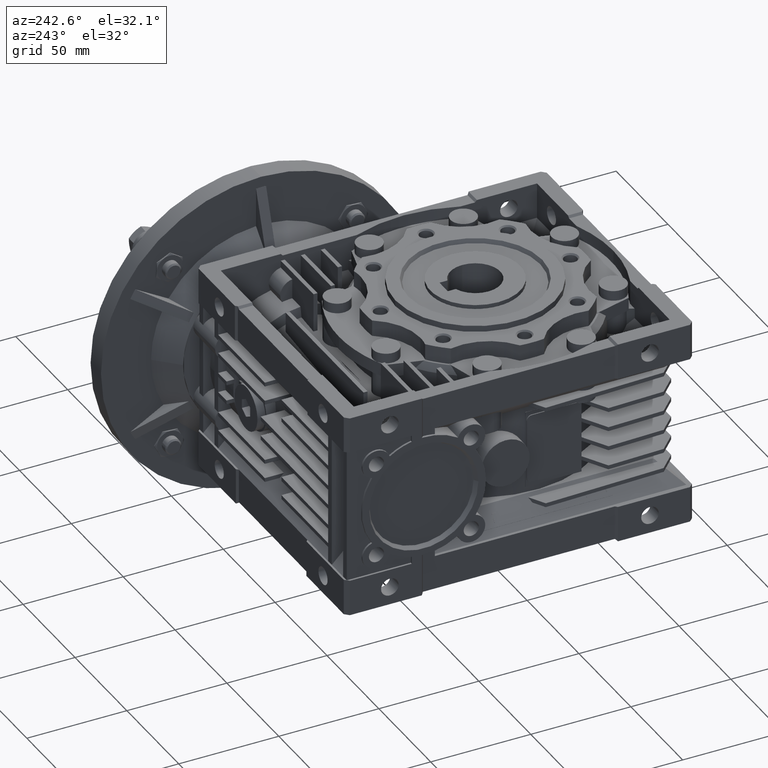
[diagram: clean part render]
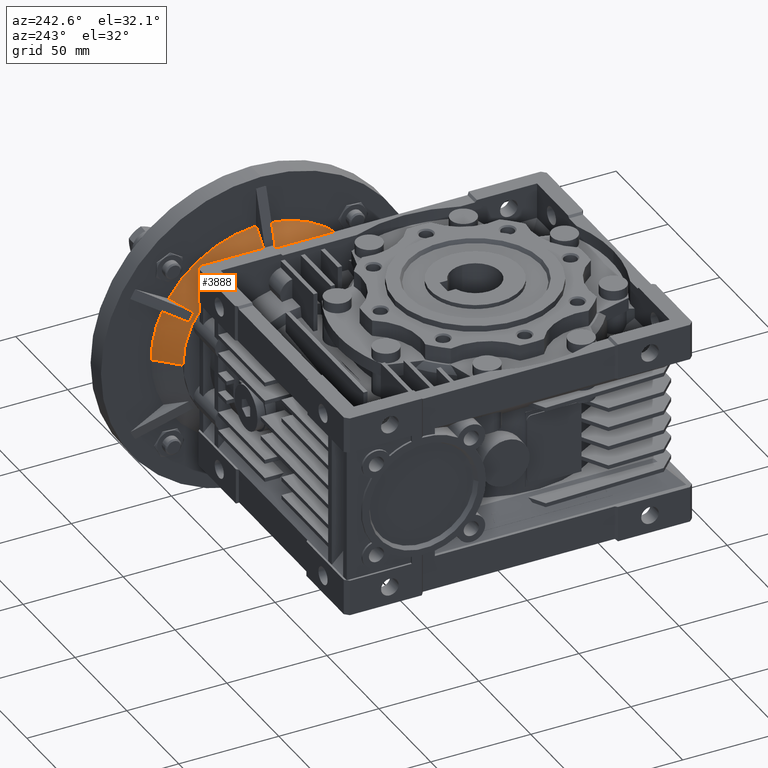
[diagram: same view with one face highlighted and labeled with its STEP entity id]
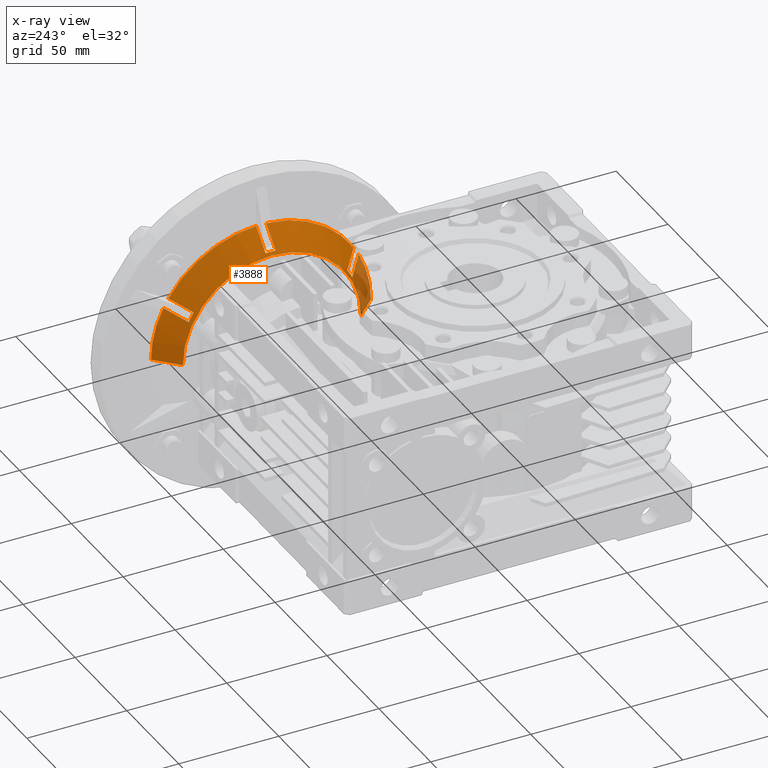
[diagram: x-ray of the same camera — body ghosted, the highlighted face saturated]
A machine part, auxiliary view. The second image highlights one B-rep face of the part: STEP entity #3888.
The next image is the same camera in x-ray: the body ghosted, the highlighted face saturated — about 8% of this face is hidden behind the body in this view.
In plain terms, the highlighted conical surface has half-angle 45 deg.
Its self-contained STEP definition (entity closure, byte-faithful):
#757 = CARTESIAN_POINT ( 'NONE',  ( 85.00000000000000000, 117.9500000000000028, 0.000000000000000000 ) ) ;
#2357 = ORIENTED_EDGE ( 'NONE', *, *, #17436, .T. ) ;
#2372 = AXIS2_PLACEMENT_3D ( 'NONE', #32932, #29253, #11903 ) ;
#2602 = DIRECTION ( 'NONE',  ( -1.000000000000000000, -2.241328441147374739E-46, -8.411704943638519843E-32 ) ) ;
#2849 = DIRECTION ( 'NONE',  ( 0.000000000000000000, 1.000000000000000000, -2.664535259100375303E-15 ) ) ;
#2958 = ORIENTED_EDGE ( 'NONE', *, *, #10149, .T. ) ;
#3000 = CARTESIAN_POINT ( 'NONE',  ( 85.00000000000000000, 14.21118033648709833, 25.28148682022515104 ) ) ;
#3473 = CIRCLE ( 'NONE', #9705, 54.94999999999999574 ) ;
#3618 = CARTESIAN_POINT ( 'NONE',  ( 75.83000000000001251, 24.66251712977949495, 25.02090740112259937 ) ) ;
#3627 = DIRECTION ( 'NONE',  ( 0.000000000000000000, -1.010212033325893122E-15, -1.000000000000000000 ) ) ;
#3888 = ADVANCED_FACE ( 'NONE', ( #39322 ), #42560, .T. ) ;
#4264 = VERTEX_POINT ( 'NONE', #27990 ) ;
#4918 = CARTESIAN_POINT ( 'NONE',  ( 81.94301536204764602, 65.50000000000000000, 51.83294730972200171 ) ) ;
#5175 = CARTESIAN_POINT ( 'NONE',  ( 85.00000000000000000, 14.21118033648709833, 25.28148682022515104 ) ) ;
#5419 = DIRECTION ( 'NONE',  ( 0.000000000000000000, 1.000000000000000000, 1.776356839400250070E-15 ) ) ;
#5517 = CARTESIAN_POINT ( 'NONE',  ( 81.94301536204761760, 19.36135087676049693, 28.08153716432209990 ) ) ;
#5602 = B_SPLINE_CURVE_WITH_KNOTS ( 'NONE', 3,
 ( #37803, #30003, #12204, #8794 ),
 .UNSPECIFIED., .F., .F.,
 ( 4, 4 ),
 ( 1.040834085586083948E-17, 0.01297641099844203810 ),
 .UNSPECIFIED. ) ;
#5750 = CIRCLE ( 'NONE', #17447, 44.50000000000000000 ) ;
#5910 = AXIS2_PLACEMENT_3D ( 'NONE', #24847, #28967, #9973 ) ;
#5946 = VERTEX_POINT ( 'NONE', #30051 ) ;
#6566 = EDGE_CURVE ( 'NONE', #5946, #38345, #35055, .T. ) ;
#6917 = VERTEX_POINT ( 'NONE', #47451 ) ;
#7303 = EDGE_CURVE ( 'NONE', #38345, #35847, #18812, .T. ) ;
#7605 = ORIENTED_EDGE ( 'NONE', *, *, #38374, .T. ) ;
#7686 = DIRECTION ( 'NONE',  ( 0.7071067811865480168, -0.7071067811865470176, 8.659560562354926695E-17 ) ) ;
#8520 = CARTESIAN_POINT ( 'NONE',  ( 75.83000000000001251, 103.8374828702204979, 20.69078038220039772 ) ) ;
#8794 = CARTESIAN_POINT ( 'NONE',  ( 75.83000000000001251, 101.3374828702205122, 25.02090740112259937 ) ) ;
#8919 = VERTEX_POINT ( 'NONE', #11535 ) ;
#9108 = VERTEX_POINT ( 'NONE', #24062 ) ;
#9363 = CARTESIAN_POINT ( 'NONE',  ( 78.88628487313006588, 60.50000000000000000, 48.77254001339400702 ) ) ;
#9705 = AXIS2_PLACEMENT_3D ( 'NONE', #31888, #13330, #43071 ) ;
#9973 = DIRECTION ( 'NONE',  ( 0.000000000000000000, 0.000000000000000000, -1.000000000000000000 ) ) ;
#10036 = B_SPLINE_CURVE_WITH_KNOTS ( 'NONE', 3,
 ( #12266, #9363, #27624, #42503 ),
 .UNSPECIFIED., .F., .F.,
 ( 4, 4 ),
 ( 1.110764993427083940E-17, 0.01297641099844202076 ),
 .UNSPECIFIED. ) ;
#10149 = EDGE_CURVE ( 'NONE', #39655, #26872, #31301, .T. ) ;
#10257 = CARTESIAN_POINT ( 'NONE',  ( 74.55000000000001137, 63.00000000000000000, 0.000000000000000000 ) ) ;
#10551 = DIRECTION ( 'NONE',  ( 0.000000000000000000, 0.000000000000000000, -1.000000000000000000 ) ) ;
#10627 = VERTEX_POINT ( 'NONE', #33612 ) ;
#11056 = EDGE_CURVE ( 'NONE', #35242, #39655, #19456, .T. ) ;
#11535 = CARTESIAN_POINT ( 'NONE',  ( 74.55000000000001137, 18.50000000000000355, 6.089556208760214551E-15 ) ) ;
#11546 = EDGE_CURVE ( 'NONE', #10627, #8919, #5750, .T. ) ;
#11903 = DIRECTION ( 'NONE',  ( 0.000000000000000000, 1.000000000000000000, 1.953992523340275196E-14 ) ) ;
#11961 = CARTESIAN_POINT ( 'NONE',  ( 78.88628487313006588, 65.50000000000000000, 48.77254001339400702 ) ) ;
#12204 = CARTESIAN_POINT ( 'NONE',  ( 78.88628487313003745, 103.9882586586922599, 26.55133351615809900 ) ) ;
#12266 = CARTESIAN_POINT ( 'NONE',  ( 75.83000000000001251, 60.50000000000000000, 45.71168778332300775 ) ) ;
#12629 = CIRCLE ( 'NONE', #25832, 45.78000000000000114 ) ;
#13163 = VERTEX_POINT ( 'NONE', #18292 ) ;
#13330 = DIRECTION ( 'NONE',  ( -1.000000000000000000, 0.000000000000000000, 0.000000000000000000 ) ) ;
#13635 = CIRCLE ( 'NONE', #32312, 45.78000000000000114 ) ;
#14117 = CARTESIAN_POINT ( 'NONE',  ( 85.00000000000000000, 63.00000000000000000, 0.000000000000000000 ) ) ;
#14174 = AXIS2_PLACEMENT_3D ( 'NONE', #21131, #2602, #2849 ) ;
#14201 = CARTESIAN_POINT ( 'NONE',  ( 75.83000000000001251, 63.00000000000000000, 0.000000000000000000 ) ) ;
#14248 = CARTESIAN_POINT ( 'NONE',  ( 75.83000000000001251, 63.00000000000000000, 0.000000000000000000 ) ) ;
#14887 = EDGE_CURVE ( 'NONE', #35235, #10627, #38596, .T. ) ;
#16154 = CARTESIAN_POINT ( 'NONE',  ( 85.00000000000000000, 111.7888196635128963, 25.28148682022509774 ) ) ;
#16761 = ORIENTED_EDGE ( 'NONE', *, *, #36068, .T. ) ;
#16777 = ORIENTED_EDGE ( 'NONE', *, *, #43853, .T. ) ;
#16863 = EDGE_CURVE ( 'NONE', #26668, #32565, #41593, .T. ) ;
#17436 = EDGE_CURVE ( 'NONE', #8919, #4264, #41066, .T. ) ;
#17447 = AXIS2_PLACEMENT_3D ( 'NONE', #10257, #18083, #25126 ) ;
#17678 = AXIS2_PLACEMENT_3D ( 'NONE', #14117, #22160, #3627 ) ;
#18083 = DIRECTION ( 'NONE',  ( 1.000000000000000000, 0.000000000000000000, -3.898255002195069934E-17 ) ) ;
#18292 = CARTESIAN_POINT ( 'NONE',  ( 85.00000000000000000, 60.50000000000000000, 54.89310065937250016 ) ) ;
#18615 = VERTEX_POINT ( 'NONE', #23301 ) ;
#18812 = B_SPLINE_CURVE_WITH_KNOTS ( 'NONE', 3,
 ( #45332, #11961, #4918, #41940 ),
 .UNSPECIFIED., .F., .F.,
 ( 4, 4 ),
 ( 0.000000000000000000, 0.01297641099844203810 ),
 .UNSPECIFIED. ) ;
#19456 = B_SPLINE_CURVE_WITH_KNOTS ( 'NONE', 3,
 ( #23549, #42063, #45693, #34517 ),
 .UNSPECIFIED., .F., .F.,
 ( 4, 4 ),
 ( 0.000000000000000000, 0.01297641099844203810 ),
 .UNSPECIFIED. ) ;
#19547 = CARTESIAN_POINT ( 'NONE',  ( 78.88628487313003745, 19.51174134130774362, 22.22120649723589736 ) ) ;
#19886 = CARTESIAN_POINT ( 'NONE',  ( 75.83000000000001251, 24.66251712977949495, 25.02090740112259937 ) ) ;
#20197 = B_SPLINE_CURVE_WITH_KNOTS ( 'NONE', 3,
 ( #19886, #24028, #5517, #46398 ),
 .UNSPECIFIED., .F., .F.,
 ( 4, 4 ),
 ( 4.906538933386799707E-18, 0.01297641099844202076 ),
 .UNSPECIFIED. ) ;
#20328 = ORIENTED_EDGE ( 'NONE', *, *, #11546, .T. ) ;
#21131 = CARTESIAN_POINT ( 'NONE',  ( 85.00000000000000000, 63.00000000000000000, 0.000000000000000000 ) ) ;
#21174 = ORIENTED_EDGE ( 'NONE', *, *, #24849, .T. ) ;
#21216 = ORIENTED_EDGE ( 'NONE', *, *, #34669, .F. ) ;
#22096 = ORIENTED_EDGE ( 'NONE', *, *, #11056, .T. ) ;
#22160 = DIRECTION ( 'NONE',  ( -1.000000000000000000, 0.000000000000000000, 0.000000000000000000 ) ) ;
#22241 = CIRCLE ( 'NONE', #37063, 54.94999999999999574 ) ;
#22652 = ORIENTED_EDGE ( 'NONE', *, *, #44993, .T. ) ;
#23299 = EDGE_CURVE ( 'NONE', #18615, #35242, #12629, .T. ) ;
#23301 = CARTESIAN_POINT ( 'NONE',  ( 75.83000000000001251, 101.3374828702205122, 25.02090740112259937 ) ) ;
#23549 = CARTESIAN_POINT ( 'NONE',  ( 75.83000000000001251, 103.8374828702204979, 20.69078038220039772 ) ) ;
#23734 = DIRECTION ( 'NONE',  ( 1.000000000000000000, 6.313825208286829550E-17, 0.000000000000000000 ) ) ;
#23976 = CARTESIAN_POINT ( 'NONE',  ( 85.00000000000000000, 63.00000000000000000, 0.000000000000000000 ) ) ;
#24028 = CARTESIAN_POINT ( 'NONE',  ( 78.88628487313003745, 22.01174134130780402, 26.55133351615809900 ) ) ;
#24062 = CARTESIAN_POINT ( 'NONE',  ( 85.00000000000000000, 109.2888196635129106, 29.61161383914734557 ) ) ;
#24679 = EDGE_CURVE ( 'NONE', #5946, #13163, #10036, .T. ) ;
#24847 = CARTESIAN_POINT ( 'NONE',  ( 74.55000000000001137, 63.00000000000000000, 0.000000000000000000 ) ) ;
#24849 = EDGE_CURVE ( 'NONE', #32565, #35584, #13635, .T. ) ;
#25126 = DIRECTION ( 'NONE',  ( 0.000000000000000000, 0.000000000000000000, -1.000000000000000000 ) ) ;
#25749 = CARTESIAN_POINT ( 'NONE',  ( 85.00000000000000000, 8.050000000000000711, 6.729434161314705542E-15 ) ) ;
#25794 = CARTESIAN_POINT ( 'NONE',  ( 75.83000000000001251, 65.50000000000000000, 45.71168778332300775 ) ) ;
#25832 = AXIS2_PLACEMENT_3D ( 'NONE', #14248, #32087, #32333 ) ;
#26668 = VERTEX_POINT ( 'NONE', #3000 ) ;
#26872 = VERTEX_POINT ( 'NONE', #757 ) ;
#27624 = CARTESIAN_POINT ( 'NONE',  ( 81.94301536204764602, 60.50000000000000000, 51.83294730972200171 ) ) ;
#27990 = CARTESIAN_POINT ( 'NONE',  ( 85.00000000000000000, 8.050000000000000711, 6.729434161314705542E-15 ) ) ;
#28939 = ORIENTED_EDGE ( 'NONE', *, *, #35057, .T. ) ;
#28967 = DIRECTION ( 'NONE',  ( 1.000000000000000000, 0.000000000000000000, -3.898255002195069934E-17 ) ) ;
#29036 = VECTOR ( 'NONE', #42340, 1000.000000000000000 ) ;
#29253 = DIRECTION ( 'NONE',  ( -1.000000000000000000, -3.789260541670615007E-17, -1.235603142077785982E-31 ) ) ;
#29755 = CARTESIAN_POINT ( 'NONE',  ( 85.00000000000000000, 63.00000000000000000, 0.000000000000000000 ) ) ;
#30003 = CARTESIAN_POINT ( 'NONE',  ( 81.94301536204764602, 106.6386491232395031, 28.08153716432209990 ) ) ;
#30051 = CARTESIAN_POINT ( 'NONE',  ( 75.83000000000001251, 60.50000000000000000, 45.71168778332300775 ) ) ;
#30074 = CIRCLE ( 'NONE', #17678, 54.94999999999999574 ) ;
#31301 = CIRCLE ( 'NONE', #14174, 54.94999999999999574 ) ;
#31888 = CARTESIAN_POINT ( 'NONE',  ( 85.00000000000000000, 63.00000000000000000, 0.000000000000000000 ) ) ;
#32027 = DIRECTION ( 'NONE',  ( 0.000000000000000000, 1.000000000000000000, 0.000000000000000000 ) ) ;
#32087 = DIRECTION ( 'NONE',  ( -1.000000000000000000, -3.789260541670615007E-17, -2.190387388228805071E-31 ) ) ;
#32312 = AXIS2_PLACEMENT_3D ( 'NONE', #14201, #35698, #10551 ) ;
#32333 = DIRECTION ( 'NONE',  ( 0.000000000000000000, 1.000000000000000000, 3.463895836830489668E-14 ) ) ;
#32565 = VERTEX_POINT ( 'NONE', #42349 ) ;
#32932 = CARTESIAN_POINT ( 'NONE',  ( 75.83000000000001251, 63.00000000000000000, 0.000000000000000000 ) ) ;
#33612 = CARTESIAN_POINT ( 'NONE',  ( 74.55000000000001137, 63.00000000000000000, 44.50000000000000000 ) ) ;
#33693 = CARTESIAN_POINT ( 'NONE',  ( 85.00000000000000000, 65.50000000000000000, 54.89310065937250016 ) ) ;
#34419 = ORIENTED_EDGE ( 'NONE', *, *, #23299, .T. ) ;
#34517 = CARTESIAN_POINT ( 'NONE',  ( 85.00000000000000000, 111.7888196635128963, 25.28148682022509774 ) ) ;
#34669 = EDGE_CURVE ( 'NONE', #35235, #26872, #42588, .T. ) ;
#35055 = CIRCLE ( 'NONE', #2372, 45.78000000000000114 ) ;
#35057 = EDGE_CURVE ( 'NONE', #35584, #6917, #20197, .T. ) ;
#35235 = VERTEX_POINT ( 'NONE', #47758 ) ;
#35242 = VERTEX_POINT ( 'NONE', #8520 ) ;
#35584 = VERTEX_POINT ( 'NONE', #3618 ) ;
#35698 = DIRECTION ( 'NONE',  ( -1.000000000000000000, 0.000000000000000000, 0.000000000000000000 ) ) ;
#35719 = ORIENTED_EDGE ( 'NONE', *, *, #7303, .T. ) ;
#35847 = VERTEX_POINT ( 'NONE', #33693 ) ;
#36068 = EDGE_CURVE ( 'NONE', #4264, #26668, #3473, .T. ) ;
#36592 = ORIENTED_EDGE ( 'NONE', *, *, #24679, .F. ) ;
#37063 = AXIS2_PLACEMENT_3D ( 'NONE', #29755, #45813, #5419 ) ;
#37803 = CARTESIAN_POINT ( 'NONE',  ( 85.00000000000000000, 109.2888196635129106, 29.61161383914734557 ) ) ;
#38345 = VERTEX_POINT ( 'NONE', #25794 ) ;
#38374 = EDGE_CURVE ( 'NONE', #6917, #13163, #30074, .T. ) ;
#38596 = CIRCLE ( 'NONE', #5910, 44.50000000000000000 ) ;
#39322 = FACE_OUTER_BOUND ( 'NONE', #40572, .T. ) ;
#39430 = CARTESIAN_POINT ( 'NONE',  ( 85.00000000000000000, 117.9500000000000028, 0.000000000000000000 ) ) ;
#39655 = VERTEX_POINT ( 'NONE', #16154 ) ;
#40572 = EDGE_LOOP ( 'NONE', ( #20328, #2357, #16761, #45401, #21174, #28939, #7605, #36592, #45759, #35719, #22652, #16777, #34419, #22096, #2958, #21216, #41726 ) ) ;
#40981 = AXIS2_PLACEMENT_3D ( 'NONE', #23976, #23734, #32027 ) ;
#41066 = LINE ( 'NONE', #25749, #44222 ) ;
#41593 = B_SPLINE_CURVE_WITH_KNOTS ( 'NONE', 3,
 ( #5175, #44847, #19547, #45335 ),
 .UNSPECIFIED., .F., .F.,
 ( 4, 4 ),
 ( 3.469446951953614959E-18, 0.01297641099844203984 ),
 .UNSPECIFIED. ) ;
#41726 = ORIENTED_EDGE ( 'NONE', *, *, #14887, .T. ) ;
#41940 = CARTESIAN_POINT ( 'NONE',  ( 85.00000000000000000, 65.50000000000000000, 54.89310065937250016 ) ) ;
#42063 = CARTESIAN_POINT ( 'NONE',  ( 78.88628487313003745, 106.4882586586922599, 22.22120649723589736 ) ) ;
#42340 = DIRECTION ( 'NONE',  ( 0.7071067811865480168, 0.7071067811865470176, 0.000000000000000000 ) ) ;
#42349 = CARTESIAN_POINT ( 'NONE',  ( 75.83000000000001251, 22.16251712977949850, 20.69078038220039772 ) ) ;
#42503 = CARTESIAN_POINT ( 'NONE',  ( 85.00000000000000000, 60.50000000000000000, 54.89310065937250016 ) ) ;
#42560 = CONICAL_SURFACE ( 'NONE', #40981, 54.94999999999999574, 0.7853981633974476129 ) ;
#42588 = LINE ( 'NONE', #39430, #29036 ) ;
#43071 = DIRECTION ( 'NONE',  ( 0.000000000000000000, 1.010212033325893122E-15, -1.000000000000000000 ) ) ;
#43853 = EDGE_CURVE ( 'NONE', #9108, #18615, #5602, .T. ) ;
#44222 = VECTOR ( 'NONE', #7686, 1000.000000000000000 ) ;
#44847 = CARTESIAN_POINT ( 'NONE',  ( 81.94301536204764602, 16.86135087676050048, 23.75141014539989825 ) ) ;
#44993 = EDGE_CURVE ( 'NONE', #35847, #9108, #22241, .T. ) ;
#45332 = CARTESIAN_POINT ( 'NONE',  ( 75.83000000000001251, 65.50000000000000000, 45.71168778332300775 ) ) ;
#45335 = CARTESIAN_POINT ( 'NONE',  ( 75.83000000000001251, 22.16251712977949850, 20.69078038220039772 ) ) ;
#45401 = ORIENTED_EDGE ( 'NONE', *, *, #16863, .T. ) ;
#45693 = CARTESIAN_POINT ( 'NONE',  ( 81.94301536204764602, 109.1386491232395031, 23.75141014539984852 ) ) ;
#45759 = ORIENTED_EDGE ( 'NONE', *, *, #6566, .T. ) ;
#45813 = DIRECTION ( 'NONE',  ( -1.000000000000000000, -9.961459738432791313E-47, 5.607803295759010309E-32 ) ) ;
#46398 = CARTESIAN_POINT ( 'NONE',  ( 85.00000000000000000, 16.71118033648709300, 29.61161383914734557 ) ) ;
#47451 = CARTESIAN_POINT ( 'NONE',  ( 85.00000000000000000, 16.71118033648709300, 29.61161383914734557 ) ) ;
#47758 = CARTESIAN_POINT ( 'NONE',  ( 74.55000000000001137, 107.5000000000000000, 0.000000000000000000 ) ) ;